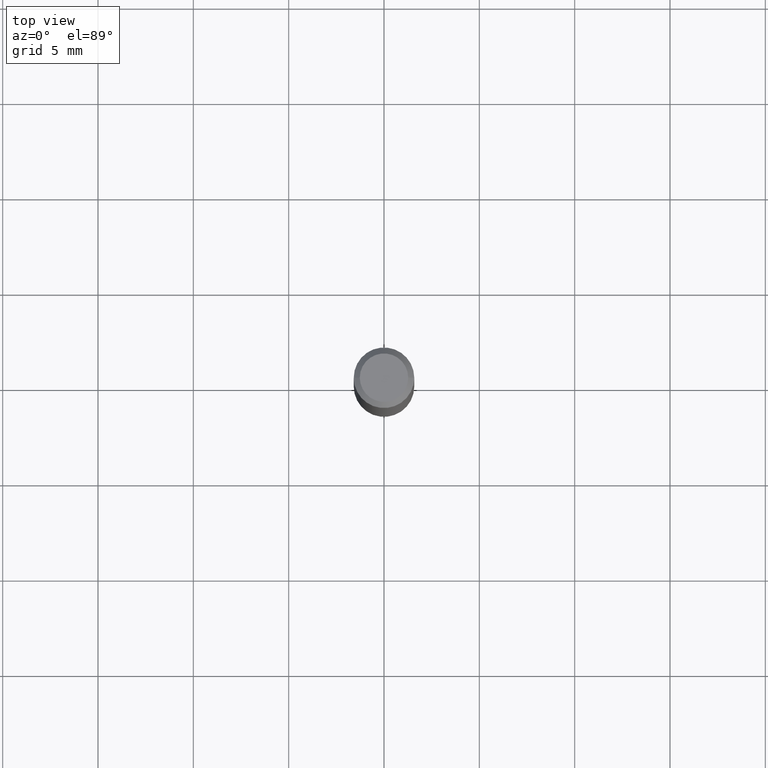
[diagram: clean part render]
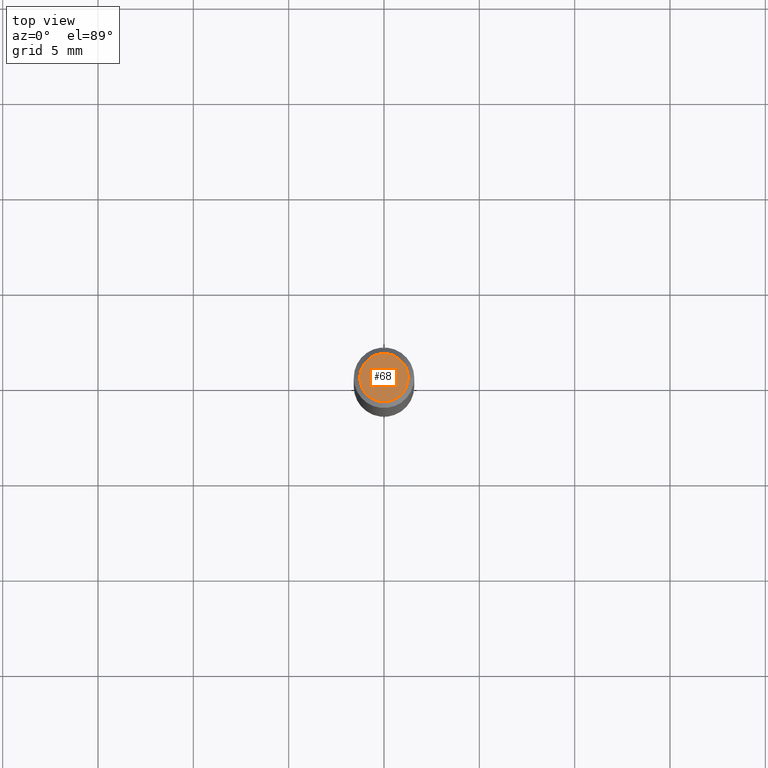
[diagram: same view with one face highlighted and labeled with its STEP entity id]
A machine part, top view. The second image highlights one B-rep face of the part: STEP entity #68.
In plain terms, the highlighted planar face has unit normal (0, -0, -1).
Its self-contained STEP definition (entity closure, byte-faithful):
#6 = DIRECTION ( 'NONE',  ( 2.438088387897960049E-29, -3.491481338843145188E-15, -1.000000000000000000 ) ) ;
#14 = CARTESIAN_POINT ( 'NONE',  ( 0.04999999999999999584, -4.077247707424184705E-16, 3.380025165673154903E-19 ) ) ;
#28 = VERTEX_POINT ( 'NONE', #384 ) ;
#52 = DIRECTION ( 'NONE',  ( -2.445468806185136597E-29, 3.491481338843145583E-15, 1.000000000000000000 ) ) ;
#56 = DIRECTION ( 'NONE',  ( -2.445468806185136597E-29, 3.491481338843145583E-15, 1.000000000000000000 ) ) ;
#67 = VERTEX_POINT ( 'NONE', #14 ) ;
#68 = ADVANCED_FACE ( 'NONE', ( #346 ), #455, .F. ) ;
#105 = ORIENTED_EDGE ( 'NONE', *, *, #298, .T. ) ;
#112 = DIRECTION ( 'NONE',  ( -1.000000000000000000, 6.982962677686265922E-15, -4.876176775795935793E-29 ) ) ;
#117 = AXIS2_PLACEMENT_3D ( 'NONE', #163, #52, #431 ) ;
#129 = ORIENTED_EDGE ( 'NONE', *, *, #347, .T. ) ;
#150 = CARTESIAN_POINT ( 'NONE',  ( -4.132873053354867254E-48, 5.900647395337818946E-34, 1.690012582823346072E-19 ) ) ;
#163 = CARTESIAN_POINT ( 'NONE',  ( -8.265746106709734507E-48, 1.180129479067563789E-33, 3.380025165646692144E-19 ) ) ;
#205 = DIRECTION ( 'NONE',  ( 1.000000000000000000, -6.982962677686265922E-15, 4.876194921942043128E-29 ) ) ;
#217 = CIRCLE ( 'NONE', #333, 0.04999999999999999584 ) ;
#255 = AXIS2_PLACEMENT_3D ( 'NONE', #150, #6, #112 ) ;
#293 = EDGE_LOOP ( 'NONE', ( #105, #129 ) ) ;
#295 = CIRCLE ( 'NONE', #117, 0.04999999999999999584 ) ;
#298 = EDGE_CURVE ( 'NONE', #28, #67, #217, .T. ) ;
#333 = AXIS2_PLACEMENT_3D ( 'NONE', #434, #56, #205 ) ;
#346 = FACE_OUTER_BOUND ( 'NONE', #293, .T. ) ;
#347 = EDGE_CURVE ( 'NONE', #67, #28, #295, .T. ) ;
#384 = CARTESIAN_POINT ( 'NONE',  ( -0.04999999999999999584, 3.709698922520826725E-16, 3.380025165621512536E-19 ) ) ;
#431 = DIRECTION ( 'NONE',  ( 1.000000000000000000, -6.982962677686265922E-15, 4.876194921942043128E-29 ) ) ;
#434 = CARTESIAN_POINT ( 'NONE',  ( -8.265746106709734507E-48, 1.180129479067563789E-33, 3.380025165646692144E-19 ) ) ;
#455 = PLANE ( 'NONE',  #255 ) ;